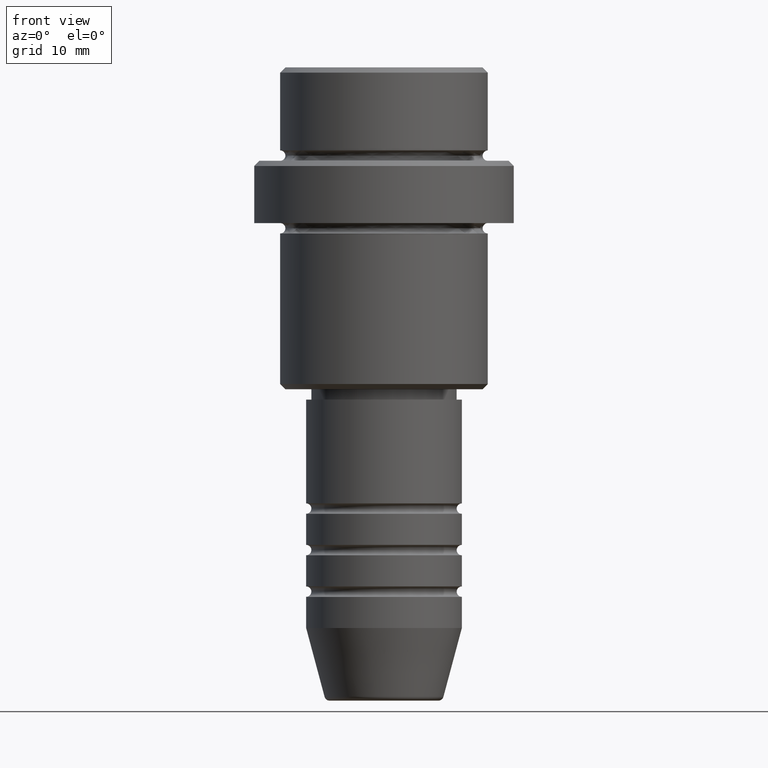
[diagram: clean part render]
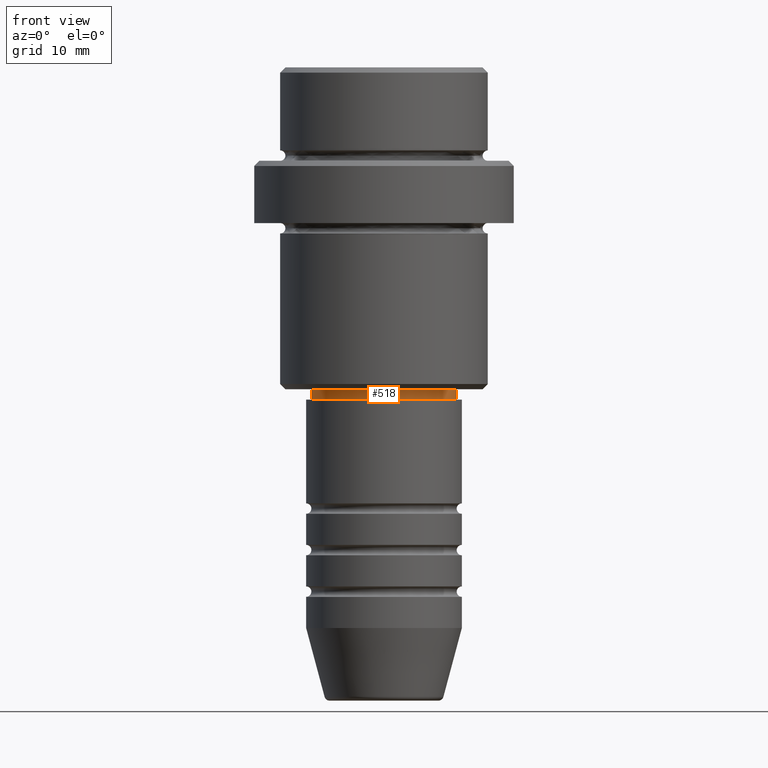
[diagram: same view with one face highlighted and labeled with its STEP entity id]
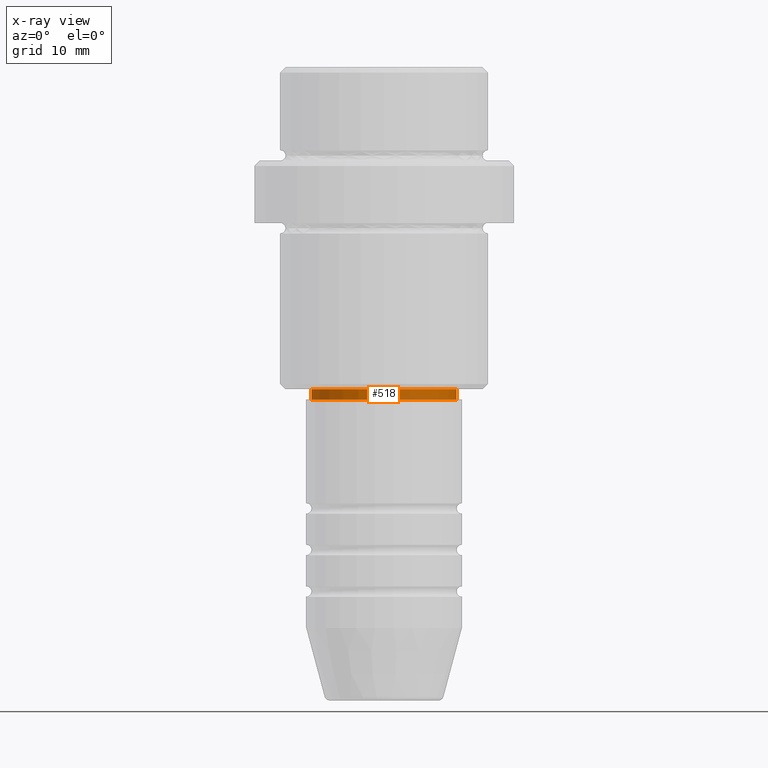
[diagram: x-ray of the same camera — body ghosted, the highlighted face saturated]
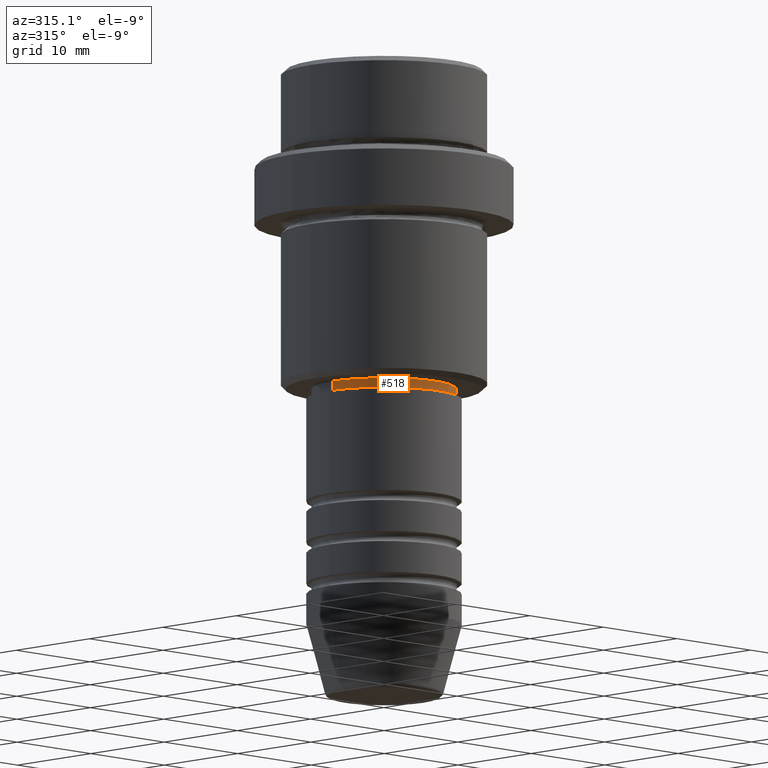
[diagram: same view with one face highlighted and labeled with its STEP entity id]
A machine part, front view. The second image highlights one B-rep face of the part: STEP entity #518.
The next image is the same camera in x-ray: the body ghosted, the highlighted face saturated — about 0% of this face is hidden behind the body in this view.
A second angle (auxiliary view) of the same face is appended — the face is thin or edge-on in the first view.
In plain terms, the highlighted cylindrical surface (partial cylindrical patch) has radius 7 mm, axis along (-0, -0, 1).
Its self-contained STEP definition (entity closure, byte-faithful):
#19 = CARTESIAN_POINT ( 'NONE',  ( 6.999999999999993783, 0.000000000000000000, -31.00000000000000000 ) ) ;
#33 = EDGE_CURVE ( 'NONE', #489, #173, #1081, .T. ) ;
#65 = CARTESIAN_POINT ( 'NONE',  ( 0.000000000000000000, 0.000000000000000000, -32.00000000000000000 ) ) ;
#70 = DIRECTION ( 'NONE',  ( 1.000000000000000000, 0.000000000000000000, 0.000000000000000000 ) ) ;
#97 = EDGE_CURVE ( 'NONE', #541, #1320, #807, .T. ) ;
#98 = CARTESIAN_POINT ( 'NONE',  ( -6.999999999999993783, 8.572527594031465301E-16, 0.000000000000000000 ) ) ;
#143 = FACE_OUTER_BOUND ( 'NONE', #467, .T. ) ;
#173 = VERTEX_POINT ( 'NONE', #1056 ) ;
#194 = DIRECTION ( 'NONE',  ( 1.000000000000000000, 0.000000000000000000, 0.000000000000000000 ) ) ;
#299 = DIRECTION ( 'NONE',  ( -0.000000000000000000, -0.000000000000000000, 1.000000000000000000 ) ) ;
#440 = ORIENTED_EDGE ( 'NONE', *, *, #794, .T. ) ;
#442 = VECTOR ( 'NONE', #299, 1000.000000000000000 ) ;
#467 = EDGE_LOOP ( 'NONE', ( #977, #884, #440, #826 ) ) ;
#484 = DIRECTION ( 'NONE',  ( 1.000000000000000000, 0.000000000000000000, 0.000000000000000000 ) ) ;
#489 = VERTEX_POINT ( 'NONE', #900 ) ;
#514 = AXIS2_PLACEMENT_3D ( 'NONE', #65, #597, #484 ) ;
#518 = ADVANCED_FACE ( 'NONE', ( #143 ), #854, .T. ) ;
#541 = VERTEX_POINT ( 'NONE', #1245 ) ;
#591 = LINE ( 'NONE', #98, #442 ) ;
#597 = DIRECTION ( 'NONE',  ( -0.000000000000000000, -0.000000000000000000, 1.000000000000000000 ) ) ;
#605 = EDGE_CURVE ( 'NONE', #489, #541, #591, .T. ) ;
#661 = DIRECTION ( 'NONE',  ( -0.000000000000000000, -0.000000000000000000, 1.000000000000000000 ) ) ;
#707 = VECTOR ( 'NONE', #661, 1000.000000000000000 ) ;
#722 = CARTESIAN_POINT ( 'NONE',  ( 0.000000000000000000, 0.000000000000000000, -31.00000000000000000 ) ) ;
#794 = EDGE_CURVE ( 'NONE', #173, #1320, #996, .T. ) ;
#807 = CIRCLE ( 'NONE', #1108, 6.999999999999993783 ) ;
#826 = ORIENTED_EDGE ( 'NONE', *, *, #97, .F. ) ;
#854 = CYLINDRICAL_SURFACE ( 'NONE', #968, 6.999999999999993783 ) ;
#884 = ORIENTED_EDGE ( 'NONE', *, *, #33, .T. ) ;
#900 = CARTESIAN_POINT ( 'NONE',  ( -6.999999999999993783, 8.572527594031465301E-16, -32.00000000000000000 ) ) ;
#938 = DIRECTION ( 'NONE',  ( -0.000000000000000000, -0.000000000000000000, 1.000000000000000000 ) ) ;
#957 = DIRECTION ( 'NONE',  ( -0.000000000000000000, -0.000000000000000000, 1.000000000000000000 ) ) ;
#968 = AXIS2_PLACEMENT_3D ( 'NONE', #1061, #957, #194 ) ;
#977 = ORIENTED_EDGE ( 'NONE', *, *, #605, .F. ) ;
#996 = LINE ( 'NONE', #1317, #707 ) ;
#1056 = CARTESIAN_POINT ( 'NONE',  ( 6.999999999999993783, 0.000000000000000000, -32.00000000000000000 ) ) ;
#1061 = CARTESIAN_POINT ( 'NONE',  ( 0.000000000000000000, 0.000000000000000000, 0.000000000000000000 ) ) ;
#1081 = CIRCLE ( 'NONE', #514, 6.999999999999993783 ) ;
#1108 = AXIS2_PLACEMENT_3D ( 'NONE', #722, #938, #70 ) ;
#1245 = CARTESIAN_POINT ( 'NONE',  ( -6.999999999999993783, 8.572527594031465301E-16, -31.00000000000000000 ) ) ;
#1317 = CARTESIAN_POINT ( 'NONE',  ( 6.999999999999993783, 0.000000000000000000, 0.000000000000000000 ) ) ;
#1320 = VERTEX_POINT ( 'NONE', #19 ) ;